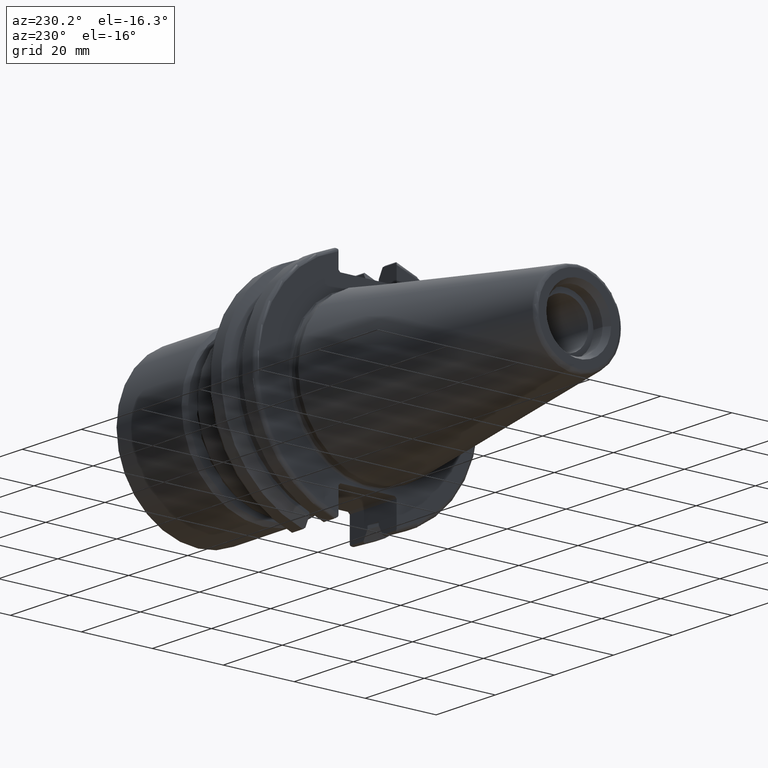
[diagram: clean part render]
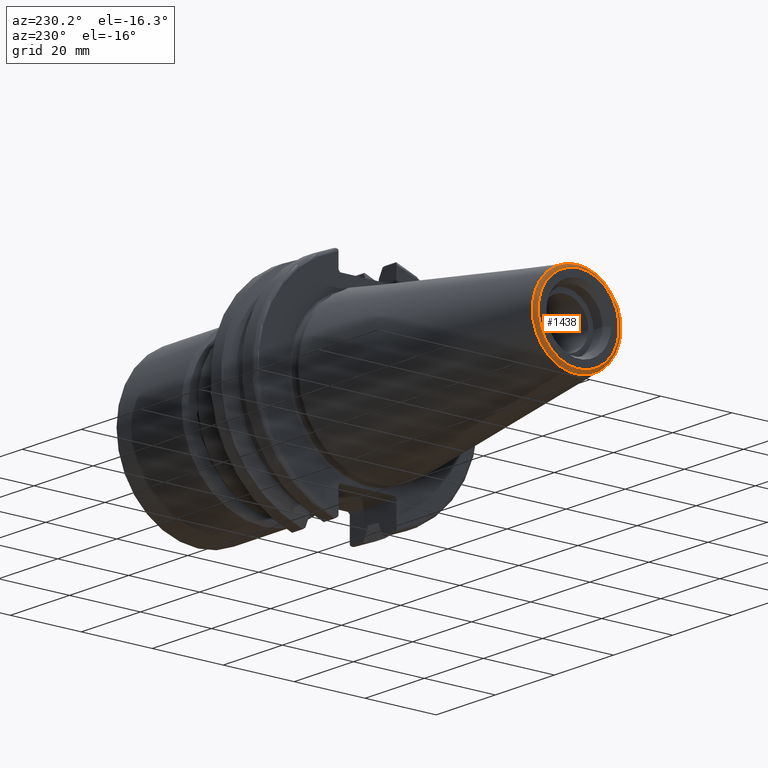
[diagram: same view with one face highlighted and labeled with its STEP entity id]
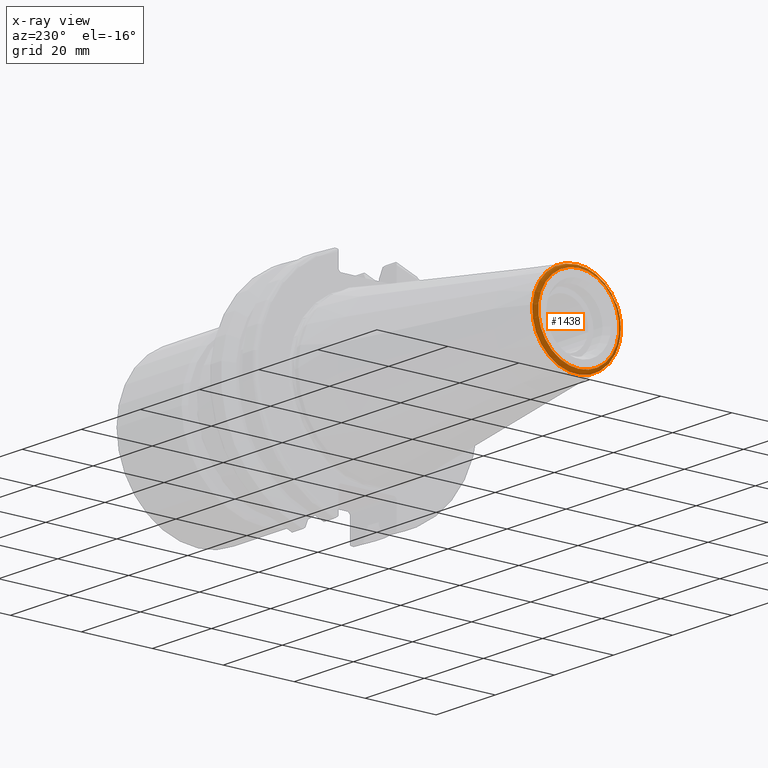
[diagram: x-ray of the same camera — body ghosted, the highlighted face saturated]
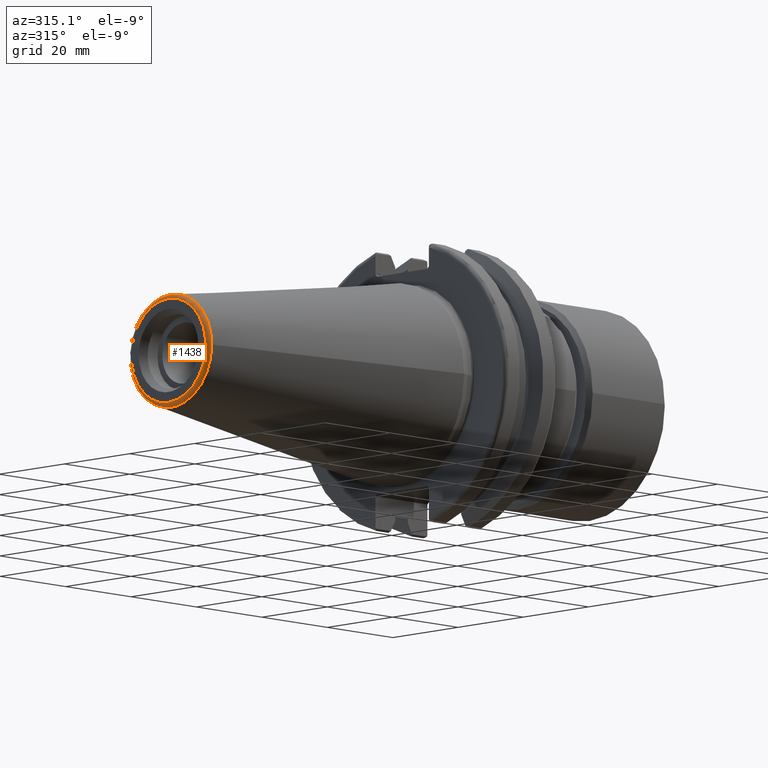
[diagram: same view with one face highlighted and labeled with its STEP entity id]
A machine part, auxiliary view. The second image highlights one B-rep face of the part: STEP entity #1438.
The next image is the same camera in x-ray: the body ghosted, the highlighted face saturated — about 0% of this face is hidden behind the body in this view.
A second angle (auxiliary view) of the same face is appended — the face is thin or edge-on in the first view.
In plain terms, the highlighted toroidal blend (fillet) surface has major radius 11.4071 mm and minor (blend) radius 1 mm.
Its self-contained STEP definition (entity closure, byte-faithful):
#547=FACE_OUTER_BOUND('',#626,.T.);
#626=EDGE_LOOP('',(#1219,#1220,#1221,#1222,#1223));
#709=CIRCLE('',#1659,12.3966635780937);
#710=CIRCLE('',#1660,12.3966635780937);
#711=CIRCLE('',#1661,1.);
#712=CIRCLE('',#1662,11.4071305970304);
#831=VERTEX_POINT('',#2554);
#832=VERTEX_POINT('',#2555);
#833=VERTEX_POINT('',#2558);
#978=EDGE_CURVE('',#831,#832,#709,.T.);
#979=EDGE_CURVE('',#832,#831,#710,.T.);
#980=EDGE_CURVE('',#831,#833,#711,.T.);
#981=EDGE_CURVE('',#833,#833,#712,.T.);
#1219=ORIENTED_EDGE('',*,*,#978,.T.);
#1220=ORIENTED_EDGE('',*,*,#979,.T.);
#1221=ORIENTED_EDGE('',*,*,#980,.T.);
#1222=ORIENTED_EDGE('',*,*,#981,.T.);
#1223=ORIENTED_EDGE('',*,*,#980,.F.);
#1405=TOROIDAL_SURFACE('',#1658,11.4071305970304,1.);
#1438=ADVANCED_FACE('',(#547),#1405,.T.);
#1658=AXIS2_PLACEMENT_3D('',#2553,#1955,#1956);
#1659=AXIS2_PLACEMENT_3D('',#2556,#1957,#1958);
#1660=AXIS2_PLACEMENT_3D('',#2557,#1959,#1960);
#1661=AXIS2_PLACEMENT_3D('',#2559,#1961,#1962);
#1662=AXIS2_PLACEMENT_3D('',#2560,#1963,#1964);
#1955=DIRECTION('center_axis',(1.,0.,0.));
#1956=DIRECTION('ref_axis',(0.,0.,-1.));
#1957=DIRECTION('center_axis',(-1.,0.,0.));
#1958=DIRECTION('ref_axis',(0.,-1.,3.06161699786838E-17));
#1959=DIRECTION('center_axis',(-1.,0.,0.));
#1960=DIRECTION('ref_axis',(0.,-1.,3.06161699786838E-17));
#1961=DIRECTION('center_axis',(0.,-1.,-1.22464679914735E-16));
#1962=DIRECTION('ref_axis',(0.,-1.22464679914735E-16,1.));
#1963=DIRECTION('center_axis',(1.,0.,0.));
#1964=DIRECTION('ref_axis',(0.,-1.,1.83697019872103E-16));
#2553=CARTESIAN_POINT('Origin',(-67.25,0.,0.));
#2554=CARTESIAN_POINT('',(-67.3943068930717,-1.5181534371019E-15,12.3966635780937));
#2555=CARTESIAN_POINT('',(-67.3943068930718,-12.3966635780937,-1.5181534371019E-15));
#2556=CARTESIAN_POINT('Origin',(-67.3943068930717,0.,-1.89769179637738E-15));
#2557=CARTESIAN_POINT('Origin',(-67.3943068930717,0.,-1.89769179637738E-15));
#2558=CARTESIAN_POINT('',(-68.25,-1.39697059731091E-15,11.4071305970304));
#2559=CARTESIAN_POINT('Origin',(-67.25,-1.39697059731091E-15,11.4071305970304));
#2560=CARTESIAN_POINT('Origin',(-68.25,0.,0.));